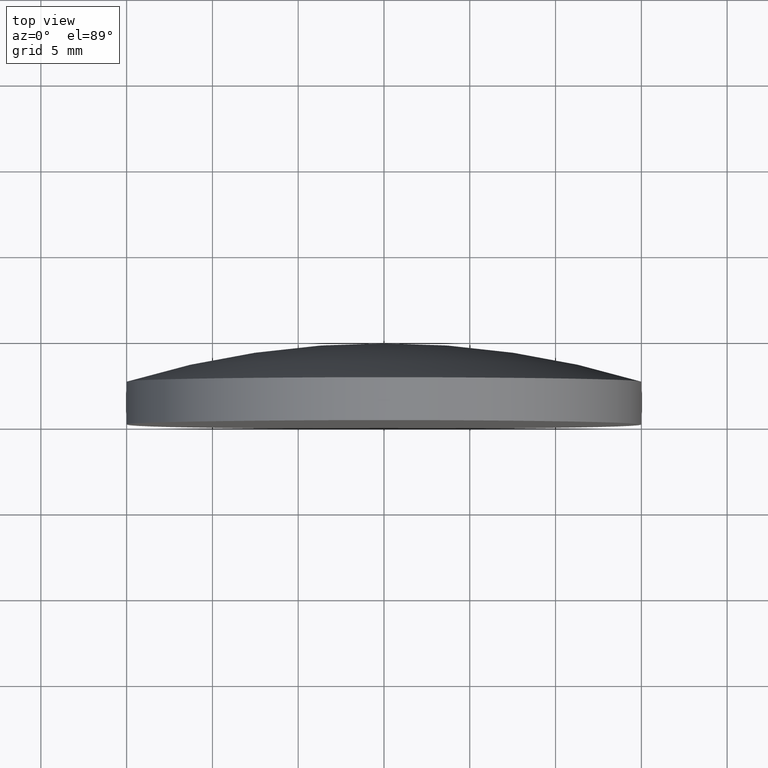
[diagram: clean part render]
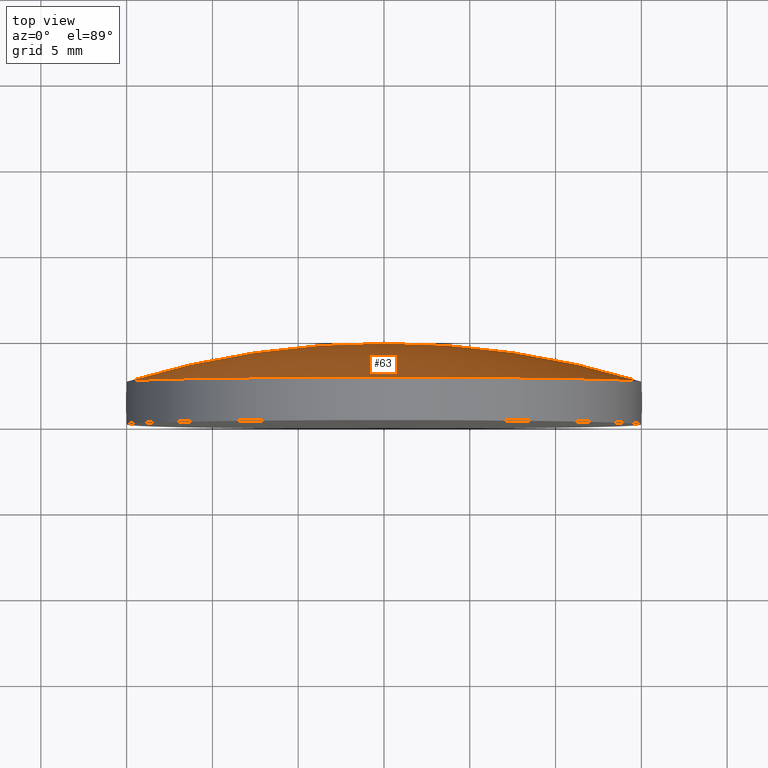
[diagram: same view with one face highlighted and labeled with its STEP entity id]
A machine part, top view. The second image highlights one B-rep face of the part: STEP entity #63.
In plain terms, the highlighted toroidal blend (fillet) surface has major radius 0.0114 mm and minor (blend) radius 51.64 mm.
Its self-contained STEP definition (entity closure, byte-faithful):
#4 = CARTESIAN_POINT ( 'NONE',  ( -0.01138314681478247783, -46.90999874539085113, -1.394033431094687307E-18 ) ) ;
#6 = CIRCLE ( 'NONE', #128, 51.64000000000000057 ) ;
#20 = VERTEX_POINT ( 'NONE', #193 ) ;
#29 = CARTESIAN_POINT ( 'NONE',  ( -15.00000000000000178, 2.500000000000000444, 0.000000000000000000 ) ) ;
#54 = CARTESIAN_POINT ( 'NONE',  ( 3.818930293324189780E-17, 2.499999999999997780, 0.000000000000000000 ) ) ;
#63 = ADVANCED_FACE ( 'NONE', ( #76 ), #185, .T. ) ;
#67 = CIRCLE ( 'NONE', #177, 15.00000000000000000 ) ;
#69 = DIRECTION ( 'NONE',  ( -1.224646799147353207E-16, 1.870736303954534262E-33, 1.000000000000000000 ) ) ;
#71 = DIRECTION ( 'NONE',  ( -1.000000000000000000, 2.891205793294678696E-17, 0.000000000000000000 ) ) ;
#72 = EDGE_LOOP ( 'NONE', ( #162, #122, #188 ) ) ;
#76 = FACE_OUTER_BOUND ( 'NONE', #72, .T. ) ;
#83 = DIRECTION ( 'NONE',  ( -1.000000000000000000, 1.527572117329677268E-17, 0.000000000000000000 ) ) ;
#87 = VERTEX_POINT ( 'NONE', #125 ) ;
#94 = EDGE_CURVE ( 'NONE', #87, #20, #6, .T. ) ;
#101 = CARTESIAN_POINT ( 'NONE',  ( -7.165898733771380869E-16, -46.90999874539085113, 0.000000000000000000 ) ) ;
#103 = CIRCLE ( 'NONE', #114, 51.64000000000000057 ) ;
#114 = AXIS2_PLACEMENT_3D ( 'NONE', #197, #140, #161 ) ;
#122 = ORIENTED_EDGE ( 'NONE', *, *, #94, .T. ) ;
#123 = AXIS2_PLACEMENT_3D ( 'NONE', #101, #178, #83 ) ;
#125 = CARTESIAN_POINT ( 'NONE',  ( 15.00000000000000000, 2.499999999999999556, 1.836970198721029589E-15 ) ) ;
#126 = EDGE_CURVE ( 'NONE', #175, #87, #67, .T. ) ;
#128 = AXIS2_PLACEMENT_3D ( 'NONE', #4, #69, #133 ) ;
#133 = DIRECTION ( 'NONE',  ( 1.000000000000000000, 0.000000000000000000, 1.224646799147353207E-16 ) ) ;
#140 = DIRECTION ( 'NONE',  ( -0.000000000000000000, 0.000000000000000000, -1.000000000000000000 ) ) ;
#143 = EDGE_CURVE ( 'NONE', #175, #20, #103, .T. ) ;
#161 = DIRECTION ( 'NONE',  ( -1.000000000000000000, 0.000000000000000000, 0.000000000000000000 ) ) ;
#162 = ORIENTED_EDGE ( 'NONE', *, *, #126, .T. ) ;
#173 = DIRECTION ( 'NONE',  ( 1.527572117329677268E-17, 1.000000000000000000, -0.000000000000000000 ) ) ;
#175 = VERTEX_POINT ( 'NONE', #29 ) ;
#177 = AXIS2_PLACEMENT_3D ( 'NONE', #54, #173, #71 ) ;
#178 = DIRECTION ( 'NONE',  ( 1.527572117329677268E-17, 1.000000000000000000, -0.000000000000000000 ) ) ;
#185 = TOROIDAL_SURFACE ( 'NONE', #123, -0.01138314681478176139, 51.64000000000000057 ) ;
#188 = ORIENTED_EDGE ( 'NONE', *, *, #143, .F. ) ;
#193 = CARTESIAN_POINT ( 'NONE',  ( 7.225416114969374086E-17, 4.730000000000000426, 0.000000000000000000 ) ) ;
#197 = CARTESIAN_POINT ( 'NONE',  ( 0.01138314681478104495, -46.90999874539085113, 0.000000000000000000 ) ) ;